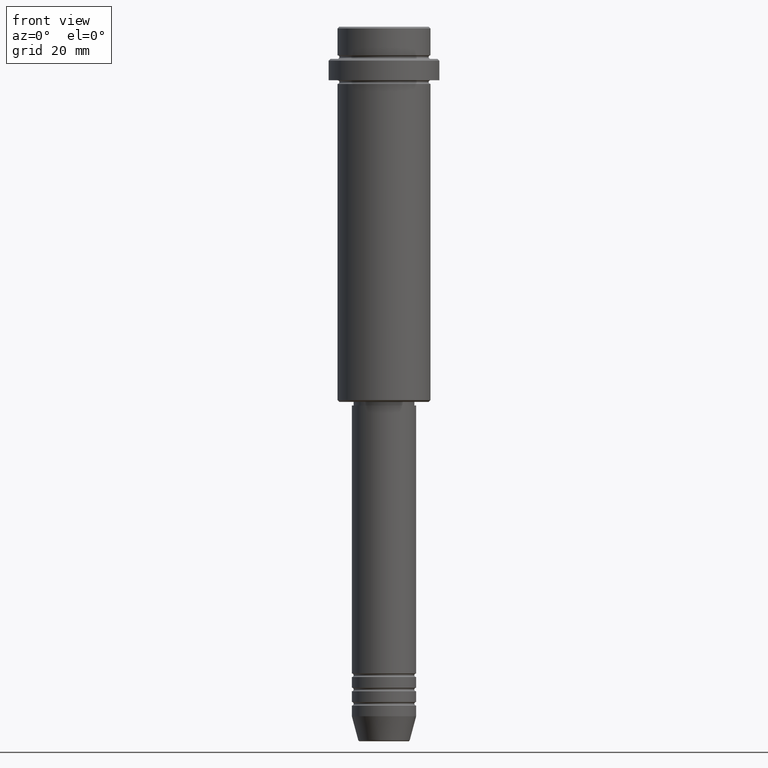
[diagram: clean part render]
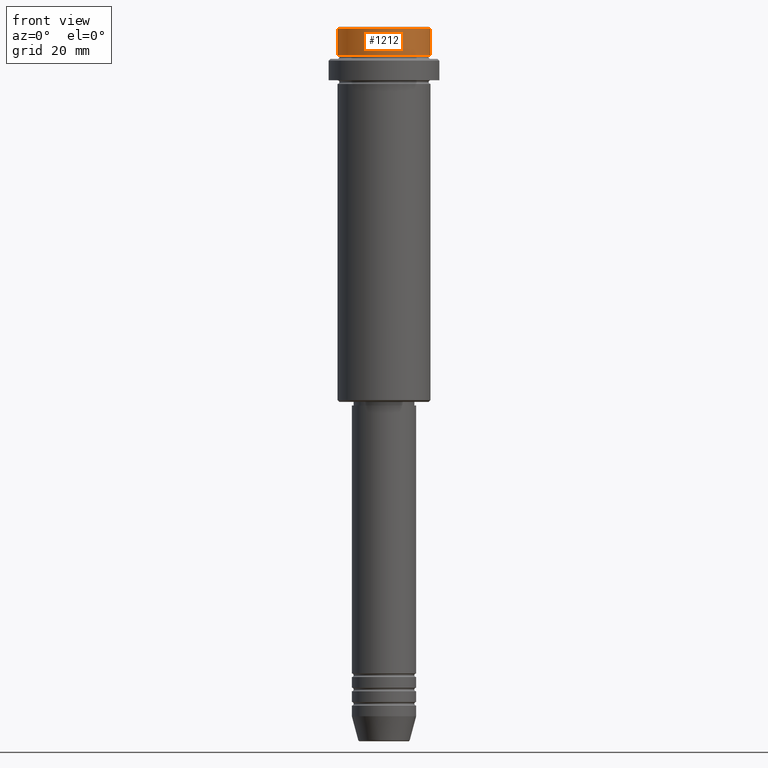
[diagram: same view with one face highlighted and labeled with its STEP entity id]
A machine part, front view. The second image highlights one B-rep face of the part: STEP entity #1212.
In plain terms, the highlighted cylindrical surface (partial cylindrical patch) has radius 13 mm, axis along (-0, -0, 1).
Its self-contained STEP definition (entity closure, byte-faithful):
#57 = AXIS2_PLACEMENT_3D ( 'NONE', #518, #620, #525 ) ;
#72 = ORIENTED_EDGE ( 'NONE', *, *, #827, .F. ) ;
#77 = DIRECTION ( 'NONE',  ( -0.000000000000000000, -0.000000000000000000, 1.000000000000000000 ) ) ;
#168 = ORIENTED_EDGE ( 'NONE', *, *, #1033, .T. ) ;
#175 = DIRECTION ( 'NONE',  ( 1.000000000000000000, 0.000000000000000000, 0.000000000000000000 ) ) ;
#221 = CIRCLE ( 'NONE', #1090, 12.99999999999999822 ) ;
#312 = VERTEX_POINT ( 'NONE', #646 ) ;
#316 = FACE_OUTER_BOUND ( 'NONE', #749, .T. ) ;
#365 = VERTEX_POINT ( 'NONE', #848 ) ;
#459 = EDGE_CURVE ( 'NONE', #619, #1396, #221, .T. ) ;
#470 = LINE ( 'NONE', #815, #776 ) ;
#518 = CARTESIAN_POINT ( 'NONE',  ( 0.000000000000000000, 0.000000000000000000, 0.000000000000000000 ) ) ;
#525 = DIRECTION ( 'NONE',  ( 1.000000000000000000, 0.000000000000000000, 0.000000000000000000 ) ) ;
#552 = DIRECTION ( 'NONE',  ( 0.000000000000000000, 0.000000000000000000, -1.000000000000000000 ) ) ;
#619 = VERTEX_POINT ( 'NONE', #1262 ) ;
#620 = DIRECTION ( 'NONE',  ( -0.000000000000000000, -0.000000000000000000, 1.000000000000000000 ) ) ;
#632 = AXIS2_PLACEMENT_3D ( 'NONE', #693, #1268, #175 ) ;
#640 = ORIENTED_EDGE ( 'NONE', *, *, #459, .T. ) ;
#646 = CARTESIAN_POINT ( 'NONE',  ( -12.99999999999999822, 1.592040838891558898E-15, -7.999999999999998224 ) ) ;
#693 = CARTESIAN_POINT ( 'NONE',  ( 0.000000000000000000, 0.000000000000000000, -7.999999999999998224 ) ) ;
#749 = EDGE_LOOP ( 'NONE', ( #72, #168, #817, #640 ) ) ;
#764 = LINE ( 'NONE', #1056, #1134 ) ;
#776 = VECTOR ( 'NONE', #930, 1000.000000000000000 ) ;
#792 = CARTESIAN_POINT ( 'NONE',  ( 0.000000000000000000, 0.000000000000000000, -0.5000000000000037748 ) ) ;
#815 = CARTESIAN_POINT ( 'NONE',  ( 12.99999999999999822, 0.000000000000000000, 0.000000000000000000 ) ) ;
#817 = ORIENTED_EDGE ( 'NONE', *, *, #1096, .T. ) ;
#827 = EDGE_CURVE ( 'NONE', #312, #1396, #764, .T. ) ;
#848 = CARTESIAN_POINT ( 'NONE',  ( 12.99999999999999822, 0.000000000000000000, -7.999999999999998224 ) ) ;
#930 = DIRECTION ( 'NONE',  ( -0.000000000000000000, -0.000000000000000000, 1.000000000000000000 ) ) ;
#993 = DIRECTION ( 'NONE',  ( 1.000000000000000000, 0.000000000000000000, 0.000000000000000000 ) ) ;
#1033 = EDGE_CURVE ( 'NONE', #312, #365, #1044, .T. ) ;
#1044 = CIRCLE ( 'NONE', #632, 12.99999999999999822 ) ;
#1056 = CARTESIAN_POINT ( 'NONE',  ( -12.99999999999999822, 1.592040838891558898E-15, 0.000000000000000000 ) ) ;
#1081 = CYLINDRICAL_SURFACE ( 'NONE', #57, 12.99999999999999822 ) ;
#1086 = CARTESIAN_POINT ( 'NONE',  ( -12.99999999999999822, 1.592040838891558898E-15, -0.5000000000000037748 ) ) ;
#1090 = AXIS2_PLACEMENT_3D ( 'NONE', #792, #552, #993 ) ;
#1096 = EDGE_CURVE ( 'NONE', #365, #619, #470, .T. ) ;
#1134 = VECTOR ( 'NONE', #77, 1000.000000000000000 ) ;
#1212 = ADVANCED_FACE ( 'NONE', ( #316 ), #1081, .T. ) ;
#1262 = CARTESIAN_POINT ( 'NONE',  ( 12.99999999999999822, 0.000000000000000000, -0.5000000000000037748 ) ) ;
#1268 = DIRECTION ( 'NONE',  ( -0.000000000000000000, -0.000000000000000000, 1.000000000000000000 ) ) ;
#1396 = VERTEX_POINT ( 'NONE', #1086 ) ;